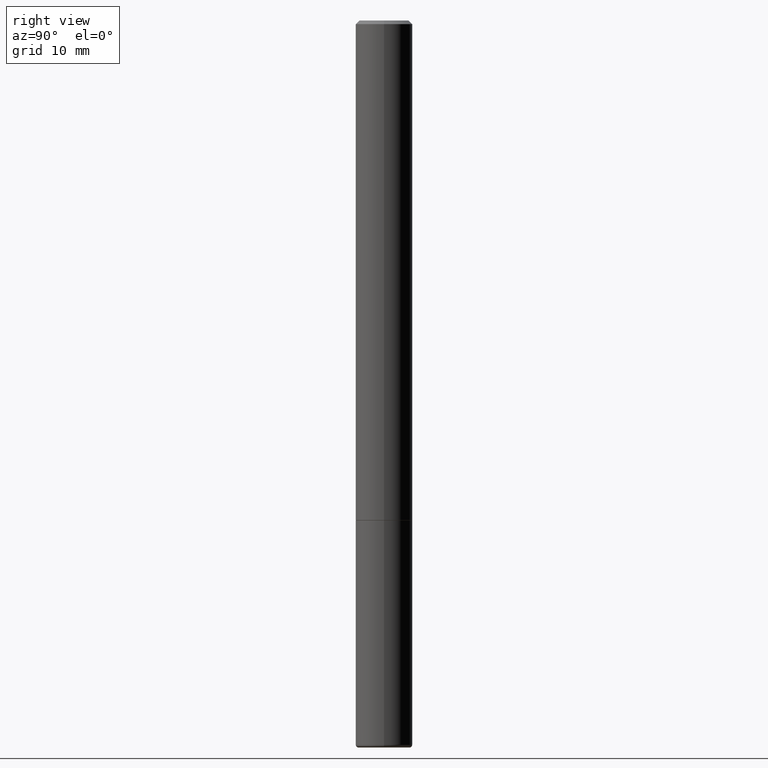
[diagram: clean part render]
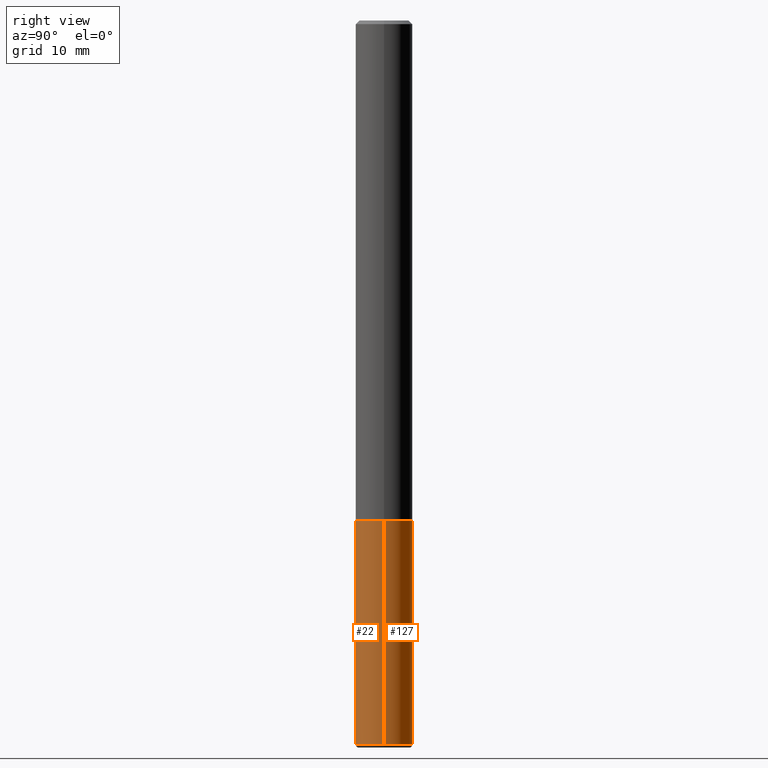
[diagram: same view with one multi-face feature highlighted, each face labeled with its STEP entity id]
A machine part, right view. The highlighted faces form ONE feature: a constant-radius fillet chain: 2 tangent blend faces with common blend radius 3.9687 mm. The faces share edges in the B-rep.
Their STEP definitions:
[1] entity #127 (Cylinder):
#4 = CYLINDRICAL_SURFACE ( 'NONE', #208, 0.1562499999999999445 ) ;
#5 = DIRECTION ( 'NONE',  ( -2.445468806185136597E-29, 3.491481338843145583E-15, 1.000000000000000000 ) ) ;
#10 = EDGE_LOOP ( 'NONE', ( #204, #79, #402, #254 ) ) ;
#38 = FACE_OUTER_BOUND ( 'NONE', #10, .T. ) ;
#79 = ORIENTED_EDGE ( 'NONE', *, *, #420, .T. ) ;
#85 = DIRECTION ( 'NONE',  ( 1.000000000000000000, -6.982962677686269077E-15, 0.000000000000000000 ) ) ;
#88 = VERTEX_POINT ( 'NONE', #270 ) ;
#117 = CARTESIAN_POINT ( 'NONE',  ( 9.745193192647769069E-29, -1.391355313528993407E-14, -3.984999999999999876 ) ) ;
#126 = CARTESIAN_POINT ( 'NONE',  ( 0.1562500000000000000, -1.069266160020712824E-14, -2.750000000000000000 ) ) ;
#127 = ADVANCED_FACE ( 'NONE', ( #38 ), #4, .T. ) ;
#144 = DIRECTION ( 'NONE',  ( -2.445468806185136597E-29, 3.491481338843145583E-15, 1.000000000000000000 ) ) ;
#146 = CARTESIAN_POINT ( 'NONE',  ( -0.1562499999999998612, -1.280333011066477753E-14, -3.984999999999999876 ) ) ;
#152 = DIRECTION ( 'NONE',  ( 1.000000000000000000, -6.982962677686262766E-15, 0.000000000000000000 ) ) ;
#204 = ORIENTED_EDGE ( 'NONE', *, *, #307, .T. ) ;
#208 = AXIS2_PLACEMENT_3D ( 'NONE', #346, #144, #413 ) ;
#214 = EDGE_CURVE ( 'NONE', #386, #88, #236, .T. ) ;
#233 = VERTEX_POINT ( 'NONE', #349 ) ;
#236 = CIRCLE ( 'NONE', #365, 0.1562500000000000000 ) ;
#241 = VECTOR ( 'NONE', #252, 39.37007874015748143 ) ;
#249 = CARTESIAN_POINT ( 'NONE',  ( 6.725039217009124520E-29, -9.601573681818649859E-15, -2.750000000000000000 ) ) ;
#252 = DIRECTION ( 'NONE',  ( -2.445468806185136877E-29, 3.491481338843145188E-15, 1.000000000000000000 ) ) ;
#254 = ORIENTED_EDGE ( 'NONE', *, *, #421, .F. ) ;
#262 = CIRCLE ( 'NONE', #382, 0.1562499999999998612 ) ;
#270 = CARTESIAN_POINT ( 'NONE',  ( -0.1562500000000000000, -1.064734038392913621E-14, -2.750000000000000000 ) ) ;
#289 = DIRECTION ( 'NONE',  ( -2.445468806185136597E-29, 3.491481338843145583E-15, 1.000000000000000000 ) ) ;
#307 = EDGE_CURVE ( 'NONE', #233, #418, #262, .T. ) ;
#321 = LINE ( 'NONE', #355, #241 ) ;
#343 = LINE ( 'NONE', #411, #367 ) ;
#346 = CARTESIAN_POINT ( 'NONE',  ( 0.000000000000000000, 0.000000000000000000, 0.000000000000000000 ) ) ;
#348 = DIRECTION ( 'NONE',  ( -2.445468806185136877E-29, 3.491481338843145188E-15, 1.000000000000000000 ) ) ;
#349 = CARTESIAN_POINT ( 'NONE',  ( 0.1562499999999998612, -1.500464105367841245E-14, -3.984999999999999876 ) ) ;
#355 = CARTESIAN_POINT ( 'NONE',  ( -0.1562499999999999445, 1.110223024625156146E-15, -7.685836078523286956E-30 ) ) ;
#365 = AXIS2_PLACEMENT_3D ( 'NONE', #249, #5, #152 ) ;
#367 = VECTOR ( 'NONE', #348, 39.37007874015748143 ) ;
#382 = AXIS2_PLACEMENT_3D ( 'NONE', #117, #289, #85 ) ;
#386 = VERTEX_POINT ( 'NONE', #126 ) ;
#402 = ORIENTED_EDGE ( 'NONE', *, *, #214, .F. ) ;
#411 = CARTESIAN_POINT ( 'NONE',  ( 0.1562499999999999445, -1.091087918388478779E-15, 7.619026212181146173E-30 ) ) ;
#413 = DIRECTION ( 'NONE',  ( 1.000000000000000000, -6.982962677686266711E-15, 4.876176775795935232E-29 ) ) ;
#418 = VERTEX_POINT ( 'NONE', #146 ) ;
#420 = EDGE_CURVE ( 'NONE', #418, #88, #321, .T. ) ;
#421 = EDGE_CURVE ( 'NONE', #233, #386, #343, .T. ) ;
[2] entity #22 (Cylinder):
#7 = DIRECTION ( 'NONE',  ( -2.445468806185136597E-29, 3.491481338843145583E-15, 1.000000000000000000 ) ) ;
#8 = EDGE_CURVE ( 'NONE', #418, #233, #29, .T. ) ;
#17 = ORIENTED_EDGE ( 'NONE', *, *, #8, .T. ) ;
#22 = ADVANCED_FACE ( 'NONE', ( #211 ), #286, .T. ) ;
#29 = CIRCLE ( 'NONE', #243, 0.1562499999999998612 ) ;
#54 = DIRECTION ( 'NONE',  ( -2.445468806185136597E-29, 3.491481338843145583E-15, 1.000000000000000000 ) ) ;
#57 = AXIS2_PLACEMENT_3D ( 'NONE', #189, #157, #128 ) ;
#88 = VERTEX_POINT ( 'NONE', #270 ) ;
#126 = CARTESIAN_POINT ( 'NONE',  ( 0.1562500000000000000, -1.069266160020712824E-14, -2.750000000000000000 ) ) ;
#128 = DIRECTION ( 'NONE',  ( 1.000000000000000000, -6.982962677686262766E-15, 0.000000000000000000 ) ) ;
#146 = CARTESIAN_POINT ( 'NONE',  ( -0.1562499999999998612, -1.280333011066477753E-14, -3.984999999999999876 ) ) ;
#157 = DIRECTION ( 'NONE',  ( -2.445468806185136597E-29, 3.491481338843145583E-15, 1.000000000000000000 ) ) ;
#189 = CARTESIAN_POINT ( 'NONE',  ( 6.725039217009124520E-29, -9.601573681818649859E-15, -2.750000000000000000 ) ) ;
#211 = FACE_OUTER_BOUND ( 'NONE', #237, .T. ) ;
#213 = CARTESIAN_POINT ( 'NONE',  ( 9.745193192647769069E-29, -1.391355313528993407E-14, -3.984999999999999876 ) ) ;
#233 = VERTEX_POINT ( 'NONE', #349 ) ;
#237 = EDGE_LOOP ( 'NONE', ( #276, #17, #306, #350 ) ) ;
#241 = VECTOR ( 'NONE', #252, 39.37007874015748143 ) ;
#243 = AXIS2_PLACEMENT_3D ( 'NONE', #213, #54, #317 ) ;
#252 = DIRECTION ( 'NONE',  ( -2.445468806185136877E-29, 3.491481338843145188E-15, 1.000000000000000000 ) ) ;
#270 = CARTESIAN_POINT ( 'NONE',  ( -0.1562500000000000000, -1.064734038392913621E-14, -2.750000000000000000 ) ) ;
#276 = ORIENTED_EDGE ( 'NONE', *, *, #420, .F. ) ;
#286 = CYLINDRICAL_SURFACE ( 'NONE', #327, 0.1562499999999999445 ) ;
#292 = CARTESIAN_POINT ( 'NONE',  ( 0.000000000000000000, 0.000000000000000000, 0.000000000000000000 ) ) ;
#306 = ORIENTED_EDGE ( 'NONE', *, *, #421, .T. ) ;
#317 = DIRECTION ( 'NONE',  ( 1.000000000000000000, -6.982962677686269077E-15, 0.000000000000000000 ) ) ;
#321 = LINE ( 'NONE', #355, #241 ) ;
#327 = AXIS2_PLACEMENT_3D ( 'NONE', #292, #7, #353 ) ;
#343 = LINE ( 'NONE', #411, #367 ) ;
#348 = DIRECTION ( 'NONE',  ( -2.445468806185136877E-29, 3.491481338843145188E-15, 1.000000000000000000 ) ) ;
#349 = CARTESIAN_POINT ( 'NONE',  ( 0.1562499999999998612, -1.500464105367841245E-14, -3.984999999999999876 ) ) ;
#350 = ORIENTED_EDGE ( 'NONE', *, *, #363, .F. ) ;
#353 = DIRECTION ( 'NONE',  ( 1.000000000000000000, -6.982962677686266711E-15, 4.876176775795935232E-29 ) ) ;
#355 = CARTESIAN_POINT ( 'NONE',  ( -0.1562499999999999445, 1.110223024625156146E-15, -7.685836078523286956E-30 ) ) ;
#363 = EDGE_CURVE ( 'NONE', #88, #386, #438, .T. ) ;
#367 = VECTOR ( 'NONE', #348, 39.37007874015748143 ) ;
#386 = VERTEX_POINT ( 'NONE', #126 ) ;
#411 = CARTESIAN_POINT ( 'NONE',  ( 0.1562499999999999445, -1.091087918388478779E-15, 7.619026212181146173E-30 ) ) ;
#418 = VERTEX_POINT ( 'NONE', #146 ) ;
#420 = EDGE_CURVE ( 'NONE', #418, #88, #321, .T. ) ;
#421 = EDGE_CURVE ( 'NONE', #233, #386, #343, .T. ) ;
#438 = CIRCLE ( 'NONE', #57, 0.1562500000000000000 ) ;